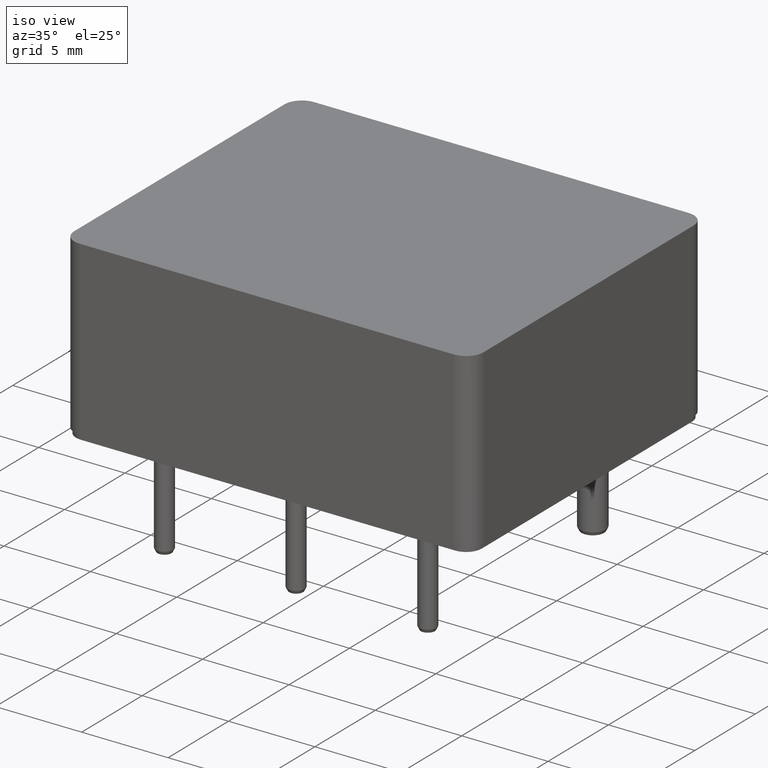
[diagram: clean part render]
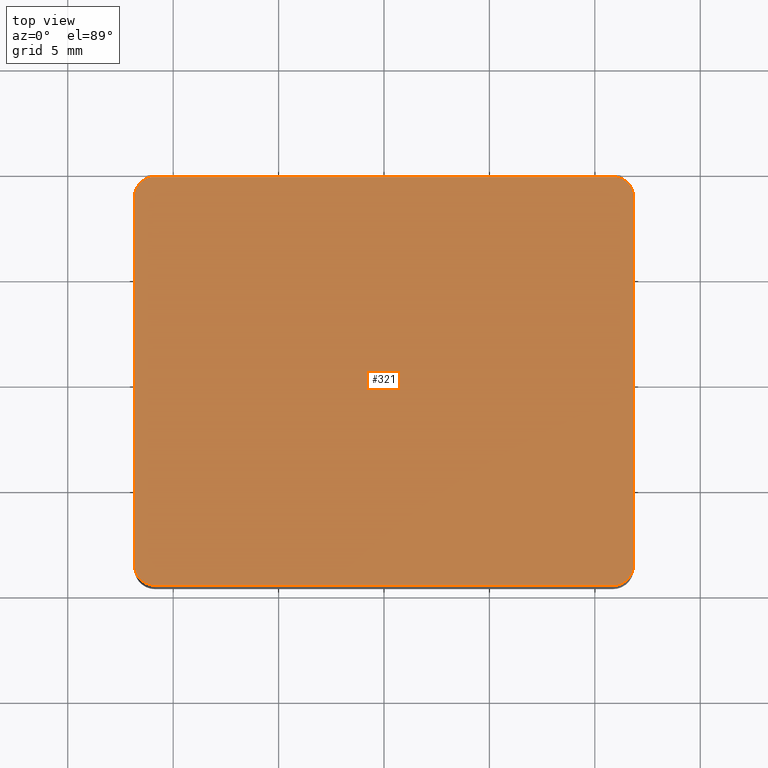
[diagram: tour spotlight — one face highlighted and labeled with its STEP entity id]
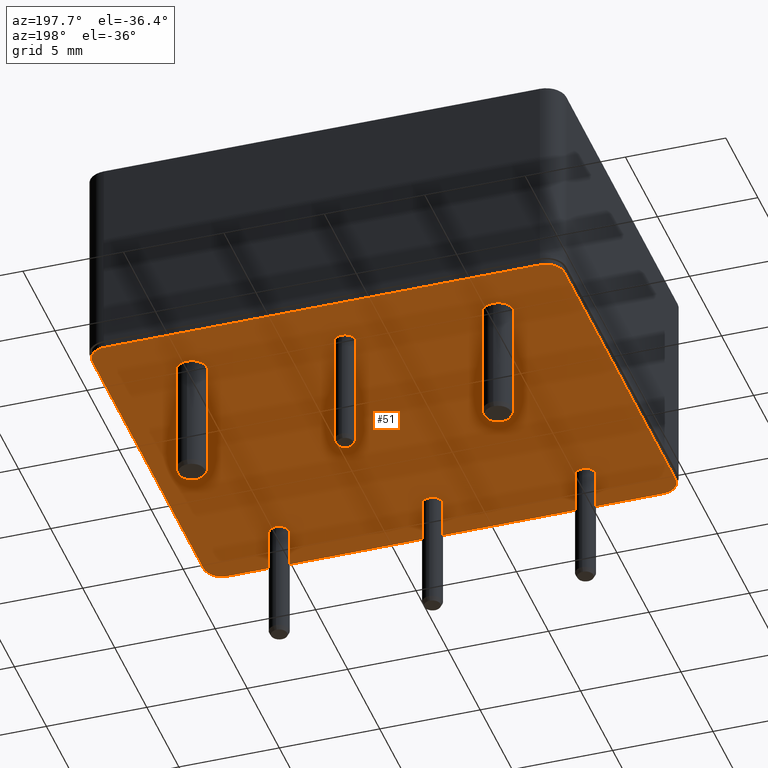
[diagram: tour spotlight — one face highlighted and labeled with its STEP entity id]
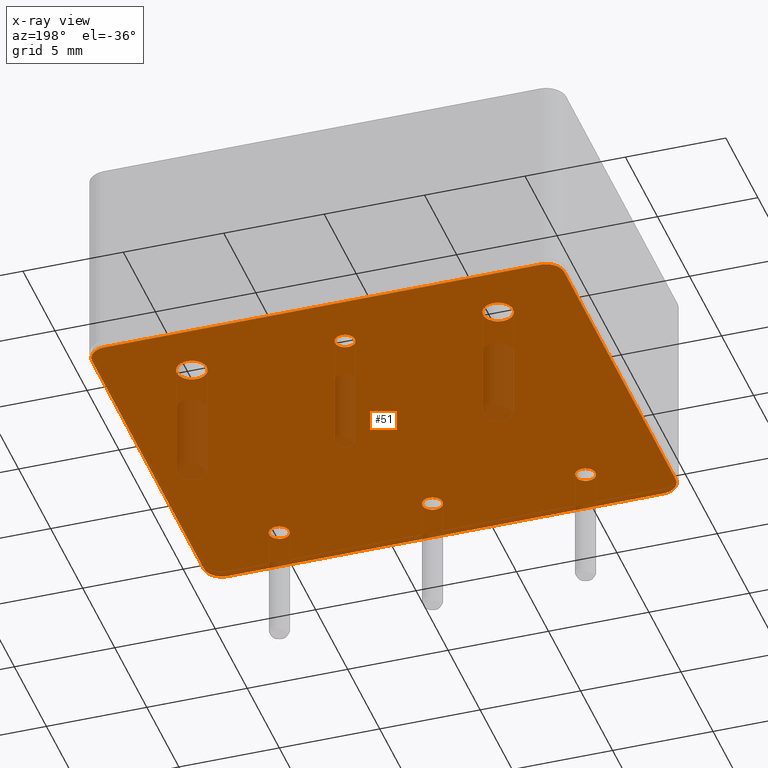
[diagram: x-ray of the same camera — body ghosted, this tour face saturated]
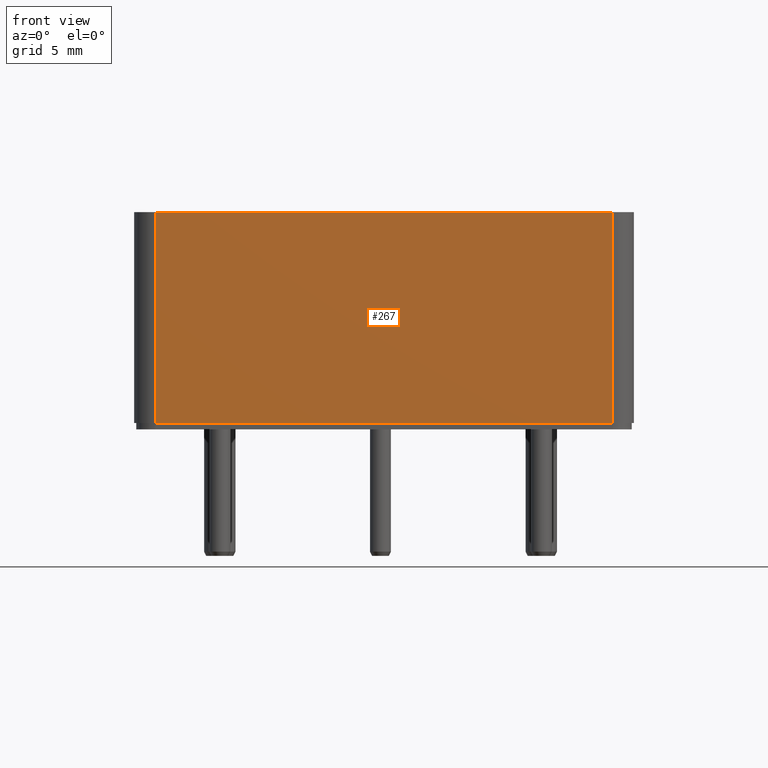
[diagram: tour spotlight — one face highlighted and labeled with its STEP entity id]
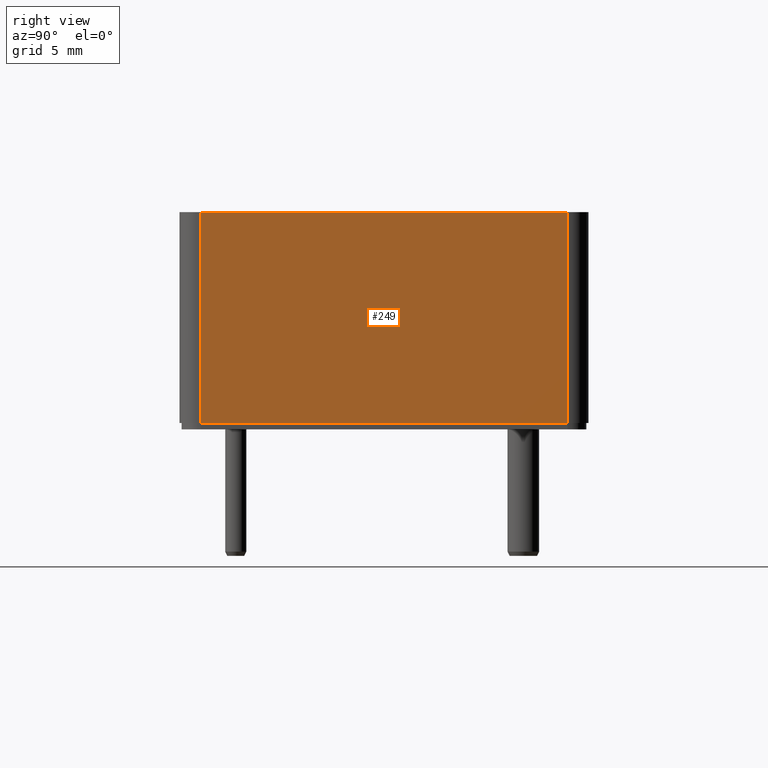
[diagram: tour spotlight — one face highlighted and labeled with its STEP entity id]
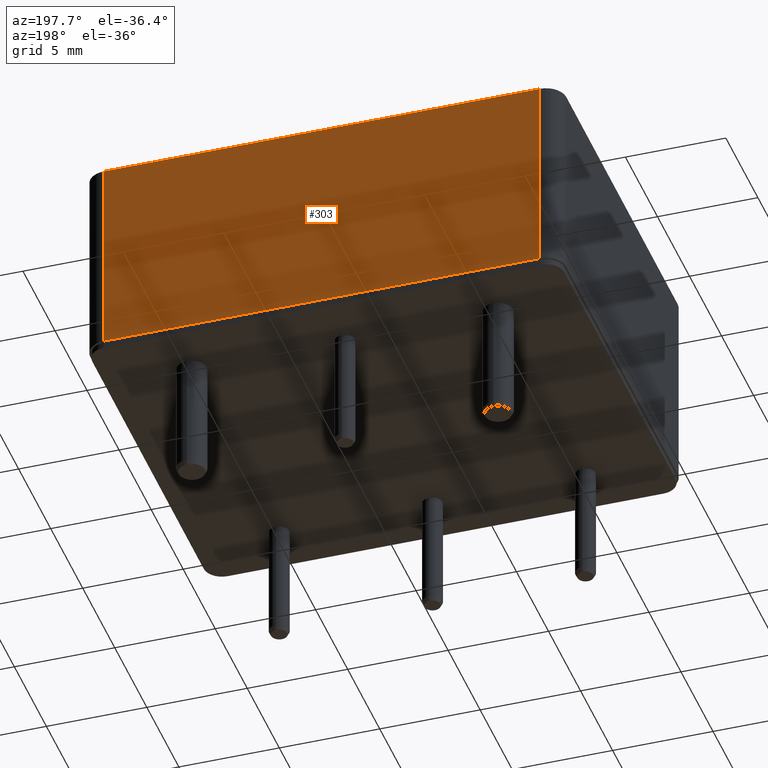
[diagram: tour spotlight — one face highlighted and labeled with its STEP entity id]
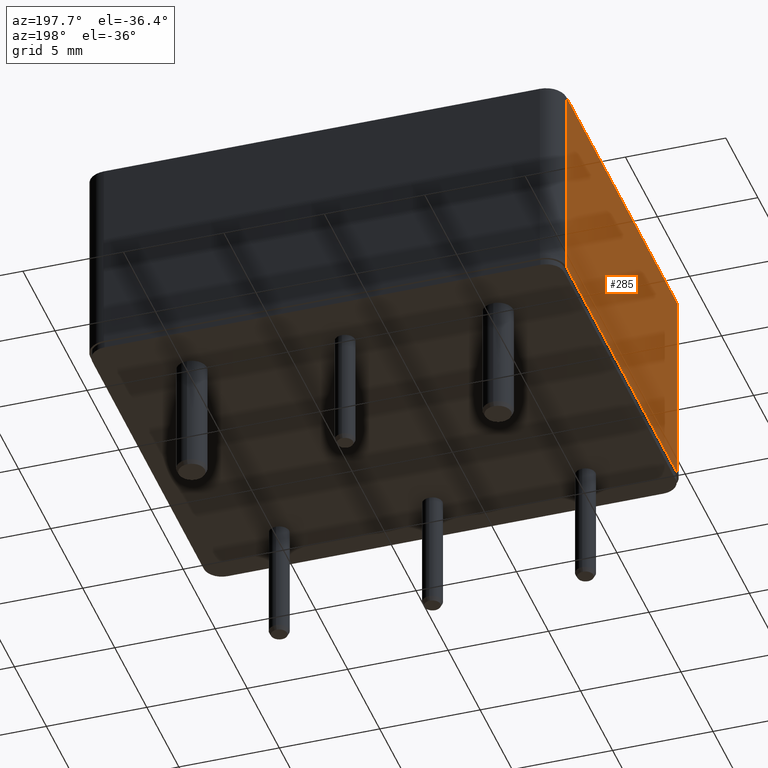
[diagram: tour spotlight — one face highlighted and labeled with its STEP entity id]
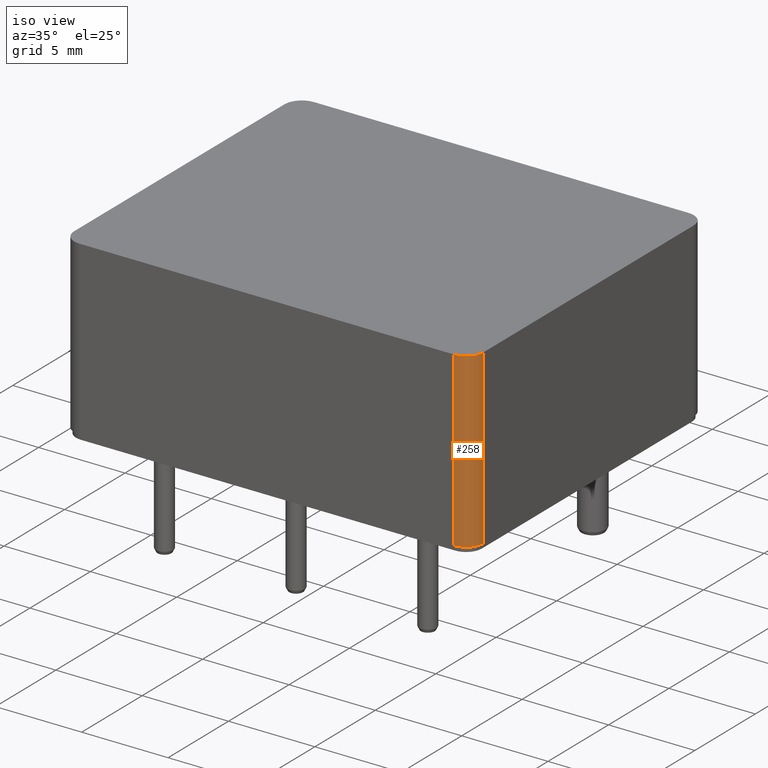
[diagram: tour spotlight — one face highlighted and labeled with its STEP entity id]
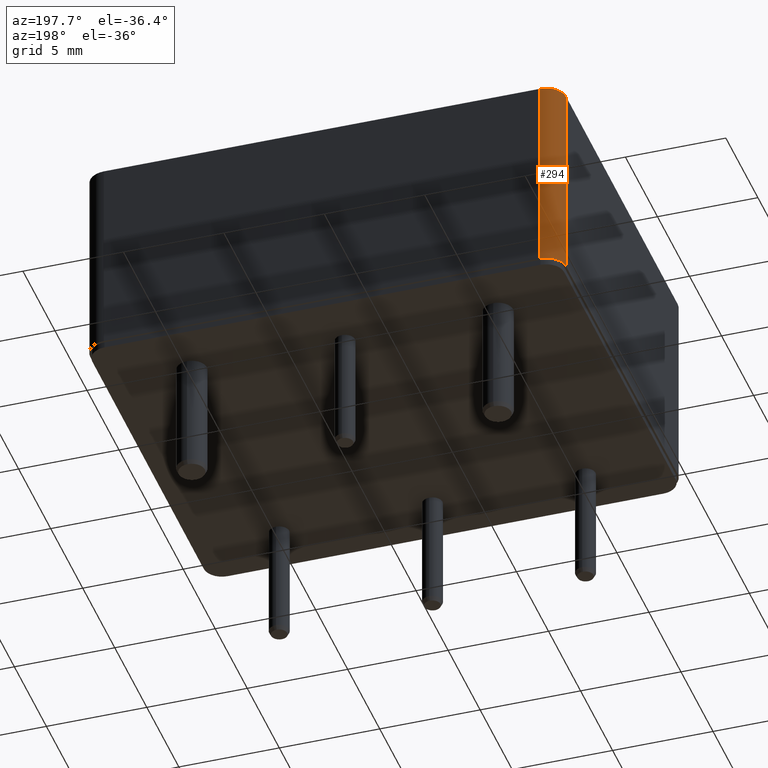
[diagram: tour spotlight — one face highlighted and labeled with its STEP entity id]
A machine part: a face-by-face anatomy tour. The part has 37 B-rep faces; the first image is the clean iso view, then the 8 largest visible faces are spotlighted one at a time (largest first), each with its STEP entity span.

Face 1 — top view, entity #321. In plain terms, the highlighted planar face has unit normal (0, 0, -1).
Definition (entity closure, byte-faithful):
#321=ADVANCED_FACE('',(#662),#664,.F.);
#662=FACE_BOUND('',#663,.T.);
#663=EDGE_LOOP('',(#864,#865,#866,#867,#868,#869,#870,#871));
#664=PLANE('',#665);
#665=AXIS2_PLACEMENT_3D('',#666,#667,#668);
#666=CARTESIAN_POINT('',(0.,0.,10.3));
#667=DIRECTION('',(1.22464679914735E-16,0.,-1.));
#668=DIRECTION('',(-6.12323399573677E-17,1.,-7.49879891330928E-33));
#864=ORIENTED_EDGE('',*,*,#945,.F.);
#865=ORIENTED_EDGE('',*,*,#943,.F.);
#866=ORIENTED_EDGE('',*,*,#941,.F.);
#867=ORIENTED_EDGE('',*,*,#939,.F.);
#868=ORIENTED_EDGE('',*,*,#937,.F.);
#869=ORIENTED_EDGE('',*,*,#935,.F.);
#870=ORIENTED_EDGE('',*,*,#949,.F.);
#871=ORIENTED_EDGE('',*,*,#947,.F.);
#935=EDGE_CURVE('',#1042,#1044,#1045,.T.);
#937=EDGE_CURVE('',#1044,#1047,#1048,.F.);
#939=EDGE_CURVE('',#1047,#1050,#1051,.T.);
#941=EDGE_CURVE('',#1050,#1053,#1054,.F.);
#943=EDGE_CURVE('',#1053,#1056,#1057,.T.);
#945=EDGE_CURVE('',#1056,#1059,#1060,.F.);
#947=EDGE_CURVE('',#1059,#1062,#1063,.T.);
#949=EDGE_CURVE('',#1062,#1042,#1065,.F.);
#1042=VERTEX_POINT('',#1288);
#1044=VERTEX_POINT('',#1292);
#1045=LINE('',#1293,#1294);
#1047=VERTEX_POINT('',#1299);
#1048=CIRCLE('',#1300,1.);
#1050=VERTEX_POINT('',#1307);
#1051=LINE('',#1308,#1309);
#1053=VERTEX_POINT('',#1314);
#1054=CIRCLE('',#1315,1.);
#1056=VERTEX_POINT('',#1322);
#1057=LINE('',#1323,#1324);
#1059=VERTEX_POINT('',#1329);
#1060=CIRCLE('',#1330,1.);
#1062=VERTEX_POINT('',#1337);
#1063=LINE('',#1338,#1339);
#1065=CIRCLE('',#1344,1.);
#1288=CARTESIAN_POINT('',(11.85,8.7,10.3));
#1292=CARTESIAN_POINT('',(11.85,-8.7,10.3));
#1293=CARTESIAN_POINT('',(11.85,8.7,10.3));
#1294=VECTOR('',#1295,1.);
#1295=DIRECTION('',(-1.0208947352875E-16,-1.,4.08357894115E-16));
#1299=CARTESIAN_POINT('',(10.85,-9.7,10.3));
#1300=AXIS2_PLACEMENT_3D('',#1301,#1302,#1303);
#1301=CARTESIAN_POINT('',(10.85,-8.7,10.3));
#1302=DIRECTION('',(-1.22464679914735E-16,-4.37905770101505E-47,1.));
#1303=DIRECTION('',(-1.77635683940025E-15,-1.,-2.17540971751502E-31));
#1307=CARTESIAN_POINT('',(-10.85,-9.7,10.3));
#1308=CARTESIAN_POINT('',(10.85,-9.7,10.3));
#1309=VECTOR('',#1310,1.);
#1310=DIRECTION('',(-1.,2.4557928655303E-16,1.63719524368686E-16));
#1314=CARTESIAN_POINT('',(-11.85,-8.7,10.3));
#1315=AXIS2_PLACEMENT_3D('',#1316,#1317,#1318);
#1316=CARTESIAN_POINT('',(-10.85,-8.7,10.3));
#1317=DIRECTION('',(-1.22464679914735E-16,0.,1.));
#1318=DIRECTION('',(-1.,0.,-1.22464679914735E-16));
#1322=CARTESIAN_POINT('',(-11.85,8.7,10.3));
#1323=CARTESIAN_POINT('',(-11.85,-8.7,10.3));
#1324=VECTOR('',#1325,1.);
#1325=DIRECTION('',(1.0208947352875E-16,1.,2.041789470575E-16));
#1329=CARTESIAN_POINT('',(-10.85,9.7,10.3));
#1330=AXIS2_PLACEMENT_3D('',#1331,#1332,#1333);
#1331=CARTESIAN_POINT('',(-10.85,8.7,10.3));
#1332=DIRECTION('',(-1.22464679914735E-16,0.,1.));
#1333=DIRECTION('',(0.,1.,0.));
#1337=CARTESIAN_POINT('',(10.85,9.7,10.3));
#1338=CARTESIAN_POINT('',(-10.85,9.7,10.3));
#1339=VECTOR('',#1340,1.);
#1340=DIRECTION('',(1.,-2.4557928655303E-16,3.27439048737373E-16));
#1344=AXIS2_PLACEMENT_3D('',#1345,#1346,#1347);
#1345=CARTESIAN_POINT('',(10.85,8.7,10.3));
#1346=DIRECTION('',(-1.22464679914735E-16,0.,1.));
#1347=DIRECTION('',(1.,0.,1.22464679914735E-16));

Face 2 — auxiliary view, entity #51. An x-ray twin of the same camera follows (body ghosted, this face saturated) — the face is partly hidden behind the body. In plain terms, the highlighted planar face has unit normal (0, 0, -1).
Definition (entity closure, byte-faithful):
#51=ADVANCED_FACE('',(#426,#428,#430,#432,#434,#436,#438),#440,.T.);
#426=FACE_BOUND('',#427,.T.);
#427=EDGE_LOOP('',(#752,#753,#754,#755,#756,#757,#758,#759));
#428=FACE_BOUND('',#429,.T.);
#429=EDGE_LOOP('',(#760));
#430=FACE_BOUND('',#431,.T.);
#431=EDGE_LOOP('',(#761));
#432=FACE_BOUND('',#433,.T.);
#433=EDGE_LOOP('',(#762));
#434=FACE_BOUND('',#435,.T.);
#435=EDGE_LOOP('',(#763));
#436=FACE_BOUND('',#437,.T.);
#437=EDGE_LOOP('',(#764));
#438=FACE_BOUND('',#439,.T.);
#439=EDGE_LOOP('',(#765));
#440=PLANE('',#441);
#441=AXIS2_PLACEMENT_3D('',#442,#443,#444);
#442=CARTESIAN_POINT('',(0.,0.,0.));
#443=DIRECTION('',(1.22464679914735E-16,0.,-1.));
#444=DIRECTION('',(-6.12323399573677E-17,1.,-7.49879891330928E-33));
#752=ORIENTED_EDGE('',*,*,#884,.T.);
#753=ORIENTED_EDGE('',*,*,#885,.T.);
#754=ORIENTED_EDGE('',*,*,#886,.T.);
#755=ORIENTED_EDGE('',*,*,#887,.T.);
#756=ORIENTED_EDGE('',*,*,#888,.T.);
#757=ORIENTED_EDGE('',*,*,#889,.T.);
#758=ORIENTED_EDGE('',*,*,#890,.T.);
#759=ORIENTED_EDGE('',*,*,#891,.T.);
#760=ORIENTED_EDGE('',*,*,#892,.F.);
#761=ORIENTED_EDGE('',*,*,#893,.F.);
#762=ORIENTED_EDGE('',*,*,#894,.F.);
#763=ORIENTED_EDGE('',*,*,#895,.F.);
#764=ORIENTED_EDGE('',*,*,#896,.F.);
#765=ORIENTED_EDGE('',*,*,#897,.F.);
#884=EDGE_CURVE('',#950,#951,#952,.F.);
#885=EDGE_CURVE('',#951,#953,#954,.F.);
#886=EDGE_CURVE('',#953,#955,#956,.F.);
#887=EDGE_CURVE('',#955,#957,#958,.F.);
#888=EDGE_CURVE('',#957,#959,#960,.F.);
#889=EDGE_CURVE('',#959,#961,#962,.F.);
#890=EDGE_CURVE('',#961,#963,#964,.F.);
#891=EDGE_CURVE('',#963,#950,#965,.F.);
#892=EDGE_CURVE('',#966,#966,#967,.T.);
#893=EDGE_CURVE('',#968,#968,#969,.T.);
#894=EDGE_CURVE('',#970,#970,#971,.T.);
#895=EDGE_CURVE('',#972,#972,#973,.T.);
#896=EDGE_CURVE('',#974,#974,#975,.T.);
#897=EDGE_CURVE('',#976,#976,#977,.T.);
#950=VERTEX_POINT('',#1066);
#951=VERTEX_POINT('',#1067);
#952=LINE('',#1068,#1069);
#953=VERTEX_POINT('',#1071);
#954=CIRCLE('',#1072,0.9);
#955=VERTEX_POINT('',#1076);
#956=LINE('',#1077,#1078);
#957=VERTEX_POINT('',#1080);
#958=CIRCLE('',#1081,0.9);
#959=VERTEX_POINT('',#1085);
#960=LINE('',#1086,#1087);
#961=VERTEX_POINT('',#1089);
#962=CIRCLE('',#1090,0.899999999999998);
#963=VERTEX_POINT('',#1094);
#964=LINE('',#1095,#1096);
#965=CIRCLE('',#1098,0.9);
#966=VERTEX_POINT('',#1102);
#967=CIRCLE('',#1103,0.75);
#968=VERTEX_POINT('',#1107);
#969=CIRCLE('',#1108,0.75);
#970=VERTEX_POINT('',#1112);
#971=CIRCLE('',#1113,0.5);
#972=VERTEX_POINT('',#1117);
#973=CIRCLE('',#1118,0.5);
#974=VERTEX_POINT('',#1122);
#975=CIRCLE('',#1123,0.5);
#976=VERTEX_POINT('',#1127);
#977=CIRCLE('',#1128,0.5);
#1066=CARTESIAN_POINT('',(-11.75,-8.7,-1.4432899320127E-15));
#1067=CARTESIAN_POINT('',(-11.75,8.7,-1.4432899320127E-15));
#1068=CARTESIAN_POINT('',(-11.75,8.7,-1.44112496050542E-15));
#1069=VECTOR('',#1070,1.);
#1070=DIRECTION('',(0.,-1.,0.));
#1071=CARTESIAN_POINT('',(-10.85,9.6,-1.33226762955019E-15));
#1072=AXIS2_PLACEMENT_3D('',#1073,#1074,#1075);
#1073=CARTESIAN_POINT('',(-10.85,8.7,-1.32874177707487E-15));
#1074=DIRECTION('',(-1.22464679914735E-16,0.,1.));
#1075=DIRECTION('',(0.,1.,0.));
#1076=CARTESIAN_POINT('',(10.85,9.6,1.33226762955019E-15));
#1077=CARTESIAN_POINT('',(10.85,9.6,1.33050470331253E-15));
#1078=VECTOR('',#1079,1.);
#1079=DIRECTION('',(-1.,-8.18597621843432E-17,-1.22627161595625E-16));
#1080=CARTESIAN_POINT('',(11.75,8.7,1.4432899320127E-15));
#1081=AXIS2_PLACEMENT_3D('',#1082,#1083,#1084);
#1082=CARTESIAN_POINT('',(10.85,8.7,1.32874177707487E-15));
#1083=DIRECTION('',(-1.22464679914735E-16,0.,1.));
#1084=DIRECTION('',(1.,0.,1.22464679914735E-16));
#1085=CARTESIAN_POINT('',(11.75,-8.7,1.4432899320127E-15));
#1086=CARTESIAN_POINT('',(11.75,-8.7,1.44112496050542E-15));
#1087=VECTOR('',#1088,1.);
#1088=DIRECTION('',(0.,1.,0.));
#1089=CARTESIAN_POINT('',(10.85,-9.6,1.33226762955019E-15));
#1090=AXIS2_PLACEMENT_3D('',#1091,#1092,#1093);
#1091=CARTESIAN_POINT('',(10.85,-8.7,1.32874177707487E-15));
#1092=DIRECTION('',(-1.22464679914735E-16,4.37905770101505E-47,1.));
#1093=DIRECTION('',(-1.97372982155584E-15,-1.,-2.41712190835003E-31));
#1094=CARTESIAN_POINT('',(-10.85,-9.6,-1.33226762955019E-15));
#1095=CARTESIAN_POINT('',(-10.85,-9.6,-1.33050470331253E-15));
#1096=VECTOR('',#1097,1.);
#1097=DIRECTION('',(1.,8.18597621843432E-17,1.22627161595625E-16));
#1098=AXIS2_PLACEMENT_3D('',#1099,#1100,#1101);
#1099=CARTESIAN_POINT('',(-10.85,-8.7,-1.32874177707487E-15));
#1100=DIRECTION('',(-1.22464679914735E-16,0.,1.));
#1101=DIRECTION('',(-1.,0.,-1.22464679914735E-16));
#1102=CARTESIAN_POINT('',(7.46,7.36,9.13586512163924E-16));
#1103=AXIS2_PLACEMENT_3D('',#1104,#1105,#1106);
#1104=CARTESIAN_POINT('',(7.46,6.61,9.13586512163923E-16));
#1105=DIRECTION('',(1.22464679914735E-16,0.,-1.));
#1106=DIRECTION('',(0.,1.,0.));
#1107=CARTESIAN_POINT('',(-7.79,7.36,-9.53999856535787E-16));
#1108=AXIS2_PLACEMENT_3D('',#1109,#1110,#1111);
#1109=CARTESIAN_POINT('',(-7.79,6.61,-9.53999856535786E-16));
#1110=DIRECTION('',(1.22464679914735E-16,0.,-1.));
#1111=DIRECTION('',(0.,1.,0.));
#1112=CARTESIAN_POINT('',(-0.169999999999999,-6.53,-2.08189955855049E-17));
#1113=AXIS2_PLACEMENT_3D('',#1114,#1115,#1116);
#1114=CARTESIAN_POINT('',(-0.169999999999999,-7.03,-2.08189955855048E-17));
#1115=DIRECTION('',(1.22464679914735E-16,0.,-1.));
#1116=DIRECTION('',(-5.55111512312578E-17,1.,-6.79815536723444E-33));
#1117=CARTESIAN_POINT('',(7.46,-6.53,9.13586512163924E-16));
#1118=AXIS2_PLACEMENT_3D('',#1119,#1120,#1121);
#1119=CARTESIAN_POINT('',(7.46,-7.03,9.13586512163923E-16));
#1120=DIRECTION('',(1.22464679914735E-16,0.,-1.));
#1121=DIRECTION('',(0.,1.,0.));
#1122=CARTESIAN_POINT('',(-0.17,7.11,-2.0818995585505E-17));
#1123=AXIS2_PLACEMENT_3D('',#1124,#1125,#1126);
#1124=CARTESIAN_POINT('',(-0.17,6.61,-2.0818995585505E-17));
#1125=DIRECTION('',(1.22464679914735E-16,0.,-1.));
#1126=DIRECTION('',(-5.55111512312578E-17,1.,-6.79815536723444E-33));
#1127=CARTESIAN_POINT('',(-7.79,-6.53,-9.53999856535787E-16));
#1128=AXIS2_PLACEMENT_3D('',#1129,#1130,#1131);
#1129=CARTESIAN_POINT('',(-7.79,-7.03,-9.53999856535786E-16));
#1130=DIRECTION('',(1.22464679914735E-16,0.,-1.));
#1131=DIRECTION('',(0.,1.,0.));

Face 3 — front view, entity #267. In plain terms, the highlighted planar face has unit normal (0, -1, 0).
Definition (entity closure, byte-faithful):
#267=ADVANCED_FACE('',(#620),#622,.T.);
#620=FACE_BOUND('',#621,.T.);
#621=EDGE_LOOP('',(#840,#841,#842,#843));
#622=PLANE('',#623);
#623=AXIS2_PLACEMENT_3D('',#624,#625,#626);
#624=CARTESIAN_POINT('',(11.85,-9.7,10.3));
#625=DIRECTION('',(0.,-1.,0.));
#626=DIRECTION('',(-1.,0.,-1.49903530751076E-16));
#840=ORIENTED_EDGE('',*,*,#928,.T.);
#841=ORIENTED_EDGE('',*,*,#938,.F.);
#842=ORIENTED_EDGE('',*,*,#939,.T.);
#843=ORIENTED_EDGE('',*,*,#940,.T.);
#928=EDGE_CURVE('',#1031,#1029,#1032,.T.);
#938=EDGE_CURVE('',#1047,#1029,#1049,.T.);
#939=EDGE_CURVE('',#1047,#1050,#1051,.T.);
#940=EDGE_CURVE('',#1050,#1031,#1052,.T.);
#1029=VERTEX_POINT('',#1257);
#1031=VERTEX_POINT('',#1262);
#1032=LINE('',#1263,#1264);
#1047=VERTEX_POINT('',#1299);
#1049=LINE('',#1304,#1305);
#1050=VERTEX_POINT('',#1307);
#1051=LINE('',#1308,#1309);
#1052=LINE('',#1311,#1312);
#1257=CARTESIAN_POINT('',(10.85,-9.7,0.300000000000001));
#1262=CARTESIAN_POINT('',(-10.85,-9.7,0.299999999999999));
#1263=CARTESIAN_POINT('',(-10.85,-9.7,0.299999999999999));
#1264=VECTOR('',#1265,1.);
#1265=DIRECTION('',(1.,2.4557928655303E-16,1.43254583822601E-16));
#1299=CARTESIAN_POINT('',(10.85,-9.7,10.3));
#1304=CARTESIAN_POINT('',(10.85,-9.7,10.3));
#1305=VECTOR('',#1306,1.);
#1306=DIRECTION('',(5.32907051820075E-16,0.,-1.));
#1307=CARTESIAN_POINT('',(-10.85,-9.7,10.3));
#1308=CARTESIAN_POINT('',(10.85,-9.7,10.3));
#1309=VECTOR('',#1310,1.);
#1310=DIRECTION('',(-1.,2.4557928655303E-16,1.63719524368686E-16));
#1311=CARTESIAN_POINT('',(-10.85,-9.7,10.3));
#1312=VECTOR('',#1313,1.);
#1313=DIRECTION('',(1.77635683940025E-16,0.,-1.));

Face 4 — right view, entity #249. In plain terms, the highlighted planar face has unit normal (1, 0, 0).
Definition (entity closure, byte-faithful):
#249=ADVANCED_FACE('',(#606),#608,.T.);
#606=FACE_BOUND('',#607,.T.);
#607=EDGE_LOOP('',(#832,#833,#834,#835));
#608=PLANE('',#609);
#609=AXIS2_PLACEMENT_3D('',#610,#611,#612);
#610=CARTESIAN_POINT('',(11.85,9.7,10.3));
#611=DIRECTION('',(1.,9.15647855360954E-17,1.72461829067985E-16));
#612=DIRECTION('',(9.15647855360954E-17,-1.,0.));
#832=ORIENTED_EDGE('',*,*,#926,.T.);
#833=ORIENTED_EDGE('',*,*,#934,.F.);
#834=ORIENTED_EDGE('',*,*,#935,.T.);
#835=ORIENTED_EDGE('',*,*,#936,.T.);
#926=EDGE_CURVE('',#1026,#1027,#1028,.T.);
#934=EDGE_CURVE('',#1042,#1027,#1043,.T.);
#935=EDGE_CURVE('',#1042,#1044,#1045,.T.);
#936=EDGE_CURVE('',#1044,#1026,#1046,.T.);
#1026=VERTEX_POINT('',#1252);
#1027=VERTEX_POINT('',#1253);
#1028=LINE('',#1254,#1255);
#1042=VERTEX_POINT('',#1288);
#1043=LINE('',#1289,#1290);
#1044=VERTEX_POINT('',#1292);
#1045=LINE('',#1293,#1294);
#1046=LINE('',#1296,#1297);
#1252=CARTESIAN_POINT('',(11.85,-8.7,0.300000000000001));
#1253=CARTESIAN_POINT('',(11.85,8.7,0.300000000000001));
#1254=CARTESIAN_POINT('',(11.85,-8.7,0.300000000000002));
#1255=VECTOR('',#1256,1.);
#1256=DIRECTION('',(-2.041789470575E-16,1.,0.));
#1288=CARTESIAN_POINT('',(11.85,8.7,10.3));
#1289=CARTESIAN_POINT('',(11.85,8.7,10.3));
#1290=VECTOR('',#1291,1.);
#1291=DIRECTION('',(1.77635683940025E-16,1.77635683940025E-16,-1.));
#1292=CARTESIAN_POINT('',(11.85,-8.7,10.3));
#1293=CARTESIAN_POINT('',(11.85,8.7,10.3));
#1294=VECTOR('',#1295,1.);
#1295=DIRECTION('',(-1.0208947352875E-16,-1.,4.08357894115E-16));
#1296=CARTESIAN_POINT('',(11.85,-8.7,10.3));
#1297=VECTOR('',#1298,1.);
#1298=DIRECTION('',(0.,-1.77635683940025E-16,-1.));

Face 5 — auxiliary view, entity #303. In plain terms, the highlighted planar face has unit normal (0, 1, 0).
Definition (entity closure, byte-faithful):
#303=ADVANCED_FACE('',(#648),#650,.T.);
#648=FACE_BOUND('',#649,.T.);
#649=EDGE_LOOP('',(#856,#857,#858,#859));
#650=PLANE('',#651);
#651=AXIS2_PLACEMENT_3D('',#652,#653,#654);
#652=CARTESIAN_POINT('',(-11.85,9.7,10.3));
#653=DIRECTION('',(0.,1.,0.));
#654=DIRECTION('',(1.,0.,1.49903530751076E-16));
#856=ORIENTED_EDGE('',*,*,#932,.T.);
#857=ORIENTED_EDGE('',*,*,#946,.F.);
#858=ORIENTED_EDGE('',*,*,#947,.T.);
#859=ORIENTED_EDGE('',*,*,#948,.T.);
#932=EDGE_CURVE('',#1039,#1037,#1040,.T.);
#946=EDGE_CURVE('',#1059,#1037,#1061,.T.);
#947=EDGE_CURVE('',#1059,#1062,#1063,.T.);
#948=EDGE_CURVE('',#1062,#1039,#1064,.T.);
#1037=VERTEX_POINT('',#1275);
#1039=VERTEX_POINT('',#1280);
#1040=LINE('',#1281,#1282);
#1059=VERTEX_POINT('',#1329);
#1061=LINE('',#1334,#1335);
#1062=VERTEX_POINT('',#1337);
#1063=LINE('',#1338,#1339);
#1064=LINE('',#1341,#1342);
#1275=CARTESIAN_POINT('',(-10.85,9.7,0.299999999999999));
#1280=CARTESIAN_POINT('',(10.85,9.7,0.300000000000001));
#1281=CARTESIAN_POINT('',(10.85,9.7,0.300000000000001));
#1282=VECTOR('',#1283,1.);
#1283=DIRECTION('',(-1.,-2.4557928655303E-16,-1.43254583822601E-16));
#1329=CARTESIAN_POINT('',(-10.85,9.7,10.3));
#1334=CARTESIAN_POINT('',(-10.85,9.7,10.3));
#1335=VECTOR('',#1336,1.);
#1336=DIRECTION('',(1.77635683940025E-16,0.,-1.));
#1337=CARTESIAN_POINT('',(10.85,9.7,10.3));
#1338=CARTESIAN_POINT('',(-10.85,9.7,10.3));
#1339=VECTOR('',#1340,1.);
#1340=DIRECTION('',(1.,-2.4557928655303E-16,3.27439048737373E-16));
#1341=CARTESIAN_POINT('',(10.85,9.7,10.3));
#1342=VECTOR('',#1343,1.);
#1343=DIRECTION('',(5.32907051820075E-16,0.,-1.));

Face 6 — auxiliary view, entity #285. In plain terms, the highlighted planar face has unit normal (-1, -0, 0).
Definition (entity closure, byte-faithful):
#285=ADVANCED_FACE('',(#634),#636,.T.);
#634=FACE_BOUND('',#635,.T.);
#635=EDGE_LOOP('',(#848,#849,#850,#851));
#636=PLANE('',#637);
#637=AXIS2_PLACEMENT_3D('',#638,#639,#640);
#638=CARTESIAN_POINT('',(-11.85,-9.7,10.3));
#639=DIRECTION('',(-1.,-9.15647855360954E-17,0.));
#640=DIRECTION('',(-9.15647855360954E-17,1.,0.));
#848=ORIENTED_EDGE('',*,*,#930,.T.);
#849=ORIENTED_EDGE('',*,*,#942,.F.);
#850=ORIENTED_EDGE('',*,*,#943,.T.);
#851=ORIENTED_EDGE('',*,*,#944,.T.);
#930=EDGE_CURVE('',#1035,#1033,#1036,.T.);
#942=EDGE_CURVE('',#1053,#1033,#1055,.T.);
#943=EDGE_CURVE('',#1053,#1056,#1057,.T.);
#944=EDGE_CURVE('',#1056,#1035,#1058,.T.);
#1033=VERTEX_POINT('',#1266);
#1035=VERTEX_POINT('',#1271);
#1036=LINE('',#1272,#1273);
#1053=VERTEX_POINT('',#1314);
#1055=LINE('',#1319,#1320);
#1056=VERTEX_POINT('',#1322);
#1057=LINE('',#1323,#1324);
#1058=LINE('',#1326,#1327);
#1266=CARTESIAN_POINT('',(-11.85,-8.7,0.299999999999999));
#1271=CARTESIAN_POINT('',(-11.85,8.7,0.299999999999999));
#1272=CARTESIAN_POINT('',(-11.85,8.7,0.299999999999999));
#1273=VECTOR('',#1274,1.);
#1274=DIRECTION('',(2.041789470575E-16,-1.,0.));
#1314=CARTESIAN_POINT('',(-11.85,-8.7,10.3));
#1319=CARTESIAN_POINT('',(-11.85,-8.7,10.3));
#1320=VECTOR('',#1321,1.);
#1321=DIRECTION('',(-1.77635683940025E-16,-1.77635683940025E-16,-1.));
#1322=CARTESIAN_POINT('',(-11.85,8.7,10.3));
#1323=CARTESIAN_POINT('',(-11.85,-8.7,10.3));
#1324=VECTOR('',#1325,1.);
#1325=DIRECTION('',(1.0208947352875E-16,1.,2.041789470575E-16));
#1326=CARTESIAN_POINT('',(-11.85,8.7,10.3));
#1327=VECTOR('',#1328,1.);
#1328=DIRECTION('',(0.,1.77635683940025E-16,-1.));

Face 7 — iso view, entity #258. In plain terms, the highlighted cylindrical surface (edge-blend (fillet) strip) has radius 1 mm, axis along (-0, 0, 1).
Definition (entity closure, byte-faithful):
#258=ADVANCED_FACE('',(#613),#615,.T.);
#613=FACE_BOUND('',#614,.T.);
#614=EDGE_LOOP('',(#836,#837,#838,#839));
#615=CYLINDRICAL_SURFACE('',#616,1.);
#616=AXIS2_PLACEMENT_3D('',#617,#618,#619);
#617=CARTESIAN_POINT('',(10.85,-8.7,14.3));
#618=DIRECTION('',(-9.70686797486476E-17,0.,1.));
#619=DIRECTION('',(0.,-1.,0.));
#836=ORIENTED_EDGE('',*,*,#927,.T.);
#837=ORIENTED_EDGE('',*,*,#936,.F.);
#838=ORIENTED_EDGE('',*,*,#937,.T.);
#839=ORIENTED_EDGE('',*,*,#938,.T.);
#927=EDGE_CURVE('',#1029,#1026,#1030,.T.);
#936=EDGE_CURVE('',#1044,#1026,#1046,.T.);
#937=EDGE_CURVE('',#1044,#1047,#1048,.F.);
#938=EDGE_CURVE('',#1047,#1029,#1049,.T.);
#1026=VERTEX_POINT('',#1252);
#1029=VERTEX_POINT('',#1257);
#1030=CIRCLE('',#1258,1.);
#1044=VERTEX_POINT('',#1292);
#1046=LINE('',#1296,#1297);
#1047=VERTEX_POINT('',#1299);
#1048=CIRCLE('',#1300,1.);
#1049=LINE('',#1304,#1305);
#1252=CARTESIAN_POINT('',(11.85,-8.7,0.300000000000001));
#1257=CARTESIAN_POINT('',(10.85,-9.7,0.300000000000001));
#1258=AXIS2_PLACEMENT_3D('',#1259,#1260,#1261);
#1259=CARTESIAN_POINT('',(10.85,-8.7,0.300000000000001));
#1260=DIRECTION('',(-1.22464679914735E-16,0.,1.));
#1261=DIRECTION('',(0.,-1.,0.));
#1292=CARTESIAN_POINT('',(11.85,-8.7,10.3));
#1296=CARTESIAN_POINT('',(11.85,-8.7,10.3));
#1297=VECTOR('',#1298,1.);
#1298=DIRECTION('',(0.,-1.77635683940025E-16,-1.));
#1299=CARTESIAN_POINT('',(10.85,-9.7,10.3));
#1300=AXIS2_PLACEMENT_3D('',#1301,#1302,#1303);
#1301=CARTESIAN_POINT('',(10.85,-8.7,10.3));
#1302=DIRECTION('',(-1.22464679914735E-16,-4.37905770101505E-47,1.));
#1303=DIRECTION('',(-1.77635683940025E-15,-1.,-2.17540971751502E-31));
#1304=CARTESIAN_POINT('',(10.85,-9.7,10.3));
#1305=VECTOR('',#1306,1.);
#1306=DIRECTION('',(5.32907051820075E-16,0.,-1.));

Face 8 — auxiliary view, entity #294. In plain terms, the highlighted cylindrical surface (edge-blend (fillet) strip) has radius 1 mm, axis along (0, 0, 1).
Definition (entity closure, byte-faithful):
#294=ADVANCED_FACE('',(#641),#643,.T.);
#641=FACE_BOUND('',#642,.T.);
#642=EDGE_LOOP('',(#852,#853,#854,#855));
#643=CYLINDRICAL_SURFACE('',#644,1.);
#644=AXIS2_PLACEMENT_3D('',#645,#646,#647);
#645=CARTESIAN_POINT('',(-10.85,8.7,14.3));
#646=DIRECTION('',(0.,0.,1.));
#647=DIRECTION('',(0.,1.,0.));
#852=ORIENTED_EDGE('',*,*,#931,.T.);
#853=ORIENTED_EDGE('',*,*,#944,.F.);
#854=ORIENTED_EDGE('',*,*,#945,.T.);
#855=ORIENTED_EDGE('',*,*,#946,.T.);
#931=EDGE_CURVE('',#1037,#1035,#1038,.T.);
#944=EDGE_CURVE('',#1056,#1035,#1058,.T.);
#945=EDGE_CURVE('',#1056,#1059,#1060,.F.);
#946=EDGE_CURVE('',#1059,#1037,#1061,.T.);
#1035=VERTEX_POINT('',#1271);
#1037=VERTEX_POINT('',#1275);
#1038=CIRCLE('',#1276,1.);
#1056=VERTEX_POINT('',#1322);
#1058=LINE('',#1326,#1327);
#1059=VERTEX_POINT('',#1329);
#1060=CIRCLE('',#1330,1.);
#1061=LINE('',#1334,#1335);
#1271=CARTESIAN_POINT('',(-11.85,8.7,0.299999999999999));
#1275=CARTESIAN_POINT('',(-10.85,9.7,0.299999999999999));
#1276=AXIS2_PLACEMENT_3D('',#1277,#1278,#1279);
#1277=CARTESIAN_POINT('',(-10.85,8.7,0.299999999999999));
#1278=DIRECTION('',(-1.22464679914735E-16,0.,1.));
#1279=DIRECTION('',(0.,1.,0.));
#1322=CARTESIAN_POINT('',(-11.85,8.7,10.3));
#1326=CARTESIAN_POINT('',(-11.85,8.7,10.3));
#1327=VECTOR('',#1328,1.);
#1328=DIRECTION('',(0.,1.77635683940025E-16,-1.));
#1329=CARTESIAN_POINT('',(-10.85,9.7,10.3));
#1330=AXIS2_PLACEMENT_3D('',#1331,#1332,#1333);
#1331=CARTESIAN_POINT('',(-10.85,8.7,10.3));
#1332=DIRECTION('',(-1.22464679914735E-16,0.,1.));
#1333=DIRECTION('',(0.,1.,0.));
#1334=CARTESIAN_POINT('',(-10.85,9.7,10.3));
#1335=VECTOR('',#1336,1.);
#1336=DIRECTION('',(1.77635683940025E-16,0.,-1.));